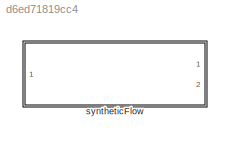
MODEL slx_d6ed71819cc4
KIND library
CONFIG AbsTol = auto
CONFIG EnableMultiTasking = off
CONFIG FixedStep = auto
CONFIG MaxStep = auto
CONFIG MinStep = auto
CONFIG RelTol = 1e-3
CONFIG SampleTimeConstraint = Unconstrained
CONFIG SolverName = VariableStepAuto
CONFIG StartTime = 0.0
CONFIG StopTime = 10.0
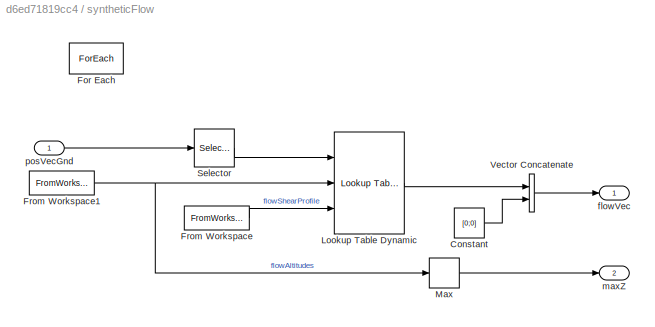
BLOCK [SubSystem] syntheticFlow
  Ports = [1, 2]
  RequestExecContextInheritance = off
BLOCK [Constant] syntheticFlow/Constant
  Value = [0;0]
  VectorParams1D = off
BLOCK [ForEach] syntheticFlow/For Each
  DisableCoverage = on
  Ports = []
BLOCK [FromWorkspace] syntheticFlow/From Workspace
  VariableName = synFlow
BLOCK [FromWorkspace] syntheticFlow/From Workspace1
  VariableName = zVals
BLOCK [Reference] syntheticFlow/Lookup Table Dynamic  REF=simulink/Lookup
Tables/Lookup
Table
Dynamic
  Ports = [3, 1]
  SourceBlock = simulink/Lookup\nTables/Lookup\nTable\nDynamic
  SourceProductBaseCode = SL
  SourceType = Lookup Table Dynamic
BLOCK [MinMax] syntheticFlow/Max
  Function = max
  Ports = [1, 1]
BLOCK [Selector] syntheticFlow/Selector
  IndexOptions = Index vector (dialog)
  Indices = [3]
  InputPortWidth = 3
  OutputSizes = 1
  Ports = [1, 1]
BLOCK [Concatenate] syntheticFlow/Vector Concatenate
  Ports = [2, 1]
BLOCK [Outport] syntheticFlow/flowVec
  ConcatenationDimension = 2
  PortDimensions = [3;1]
BLOCK [Outport] syntheticFlow/maxZ
  ConcatenationDimension = 1
  Port = 2
BLOCK [Inport] syntheticFlow/posVecGnd
  Partition = on
  PartitionDimension = 2
  PartitionOffset = 0
  PartitionWidth = 1
LINE syntheticFlow/Constant:1 -> syntheticFlow/Vector Concatenate:2
NET syntheticFlow/From Workspace1:1 -> syntheticFlow/Lookup Table Dynamic:2, syntheticFlow/Max:1
LINE syntheticFlow/From Workspace:1 -> syntheticFlow/Lookup Table Dynamic:3
LINE syntheticFlow/Lookup Table Dynamic:1 -> syntheticFlow/Vector Concatenate:1
LINE syntheticFlow/Max:1 -> syntheticFlow/maxZ:1
LINE syntheticFlow/Selector:1 -> syntheticFlow/Lookup Table Dynamic:1
LINE syntheticFlow/Vector Concatenate:1 -> syntheticFlow/flowVec:1
LINE syntheticFlow/posVecGnd:1 -> syntheticFlow/Selector:1
note: NET lines group one-source signal fan-out (src -> all destinations, sorted); 1:1 wires keep LINE
